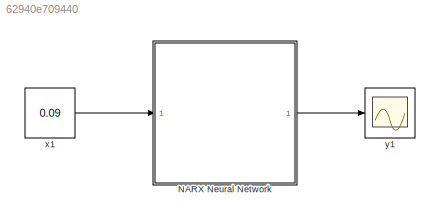
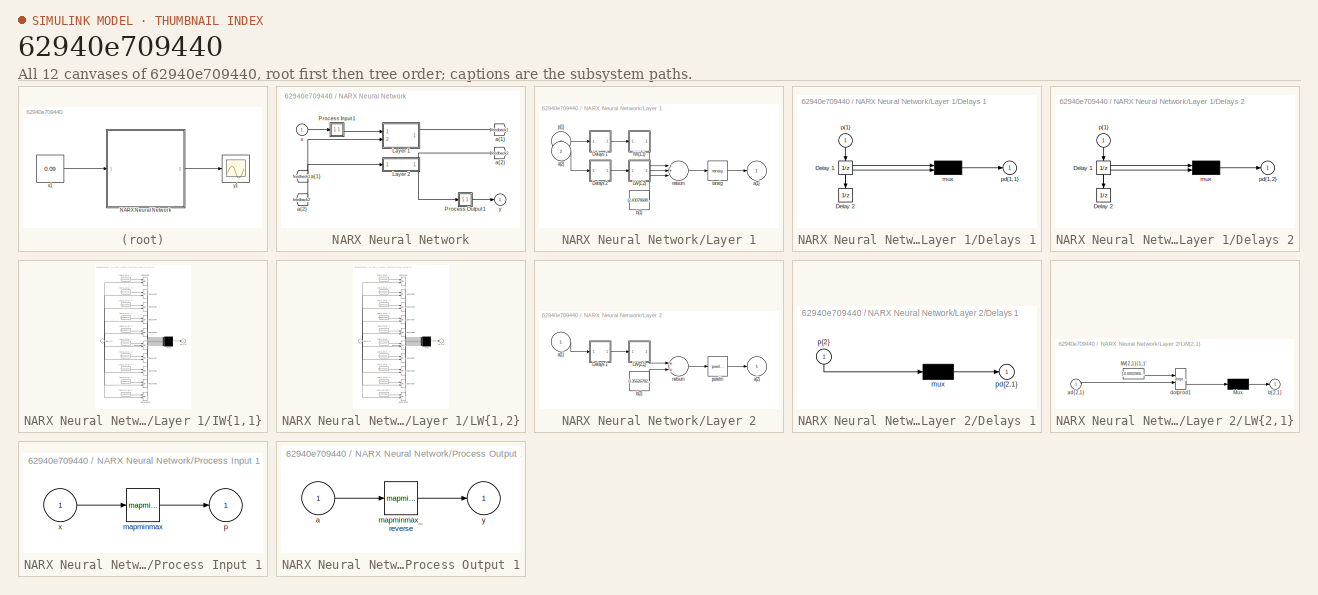
[diagram: thumbnail index - all 12 canvases of the model, root first then tree order]
MODEL slx_62940e709440
KIND model
CONFIG AbsTol = auto
CONFIG EnableMultiTasking = off
CONFIG FixedStep = auto
CONFIG MaxStep = auto
CONFIG MinStep = auto
CONFIG RelTol = 1e-3
CONFIG SampleTimeConstraint = Unconstrained
CONFIG Solver = VariableStepAuto
CONFIG SolverName = VariableStepAuto
CONFIG StartTime = 0.0
CONFIG StopTime = 10.0
BLOCK [SubSystem] NARX Neural Network
  Ports = [1, 1]
  RequestExecContextInheritance = off
BLOCK [From] NARX Neural Network/ a{1} 
  GotoTag = feedback1
BLOCK [From] NARX Neural Network/ a{2} 
  GotoTag = feedback2
BLOCK [SubSystem] NARX Neural Network/Layer 1
  Ports = [2, 1]
  RequestExecContextInheritance = off
BLOCK [SubSystem] NARX Neural Network/Layer 1/Delays 1
  Ports = [1, 1]
  RequestExecContextInheritance = off
BLOCK [UnitDelay] NARX Neural Network/Layer 1/Delays 1/Delay 1
  InitialCondition = pi_input_1_delayed_1
  SampleTime = 0.01
BLOCK [UnitDelay] NARX Neural Network/Layer 1/Delays 1/Delay 2
  InitialCondition = pi_input_1_delayed_2
  SampleTime = 0.01
BLOCK [Mux] NARX Neural Network/Layer 1/Delays 1/mux
  Inputs = 2
  Ports = [2, 1]
BLOCK [Outport] NARX Neural Network/Layer 1/Delays 1/pd{1,1}
  IconDisplay = Port number
BLOCK [Inport] NARX Neural Network/Layer 1/Delays 1/p{1}
  IconDisplay = Port number
  PortDimensions = 1
  SampleTime = 0.01
BLOCK [SubSystem] NARX Neural Network/Layer 1/Delays 2
  Ports = [1, 1]
  RequestExecContextInheritance = off
BLOCK [UnitDelay] NARX Neural Network/Layer 1/Delays 2/Delay 1
  InitialCondition = ai_layer_2_delayed_1
  SampleTime = 0.01
BLOCK [UnitDelay] NARX Neural Network/Layer 1/Delays 2/Delay 2
  InitialCondition = ai_layer_2_delayed_2
  SampleTime = 0.01
BLOCK [Mux] NARX Neural Network/Layer 1/Delays 2/mux
  Inputs = 2
  Ports = [2, 1]
BLOCK [Outport] NARX Neural Network/Layer 1/Delays 2/pd{1,2}
  IconDisplay = Port number
BLOCK [Inport] NARX Neural Network/Layer 1/Delays 2/p{1}
  IconDisplay = Port number
  PortDimensions = 1
  SampleTime = 0.01
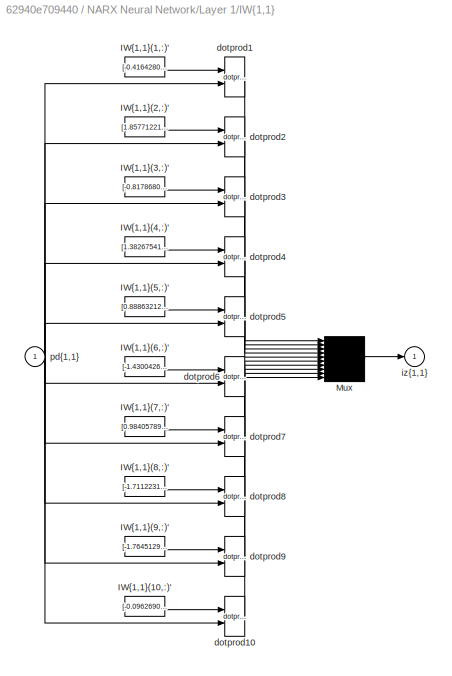
BLOCK [SubSystem] NARX Neural Network/Layer 1/IW{1,1}
  Ports = [1, 1]
  RequestExecContextInheritance = off
BLOCK [Constant] NARX Neural Network/Layer 1/IW{1,1}/IW{1,1}(1,:)'
  Value = [-0.41642805444441044482317693109507672488689422607421875;-1.9693929663534077700859370452235452830791473388671875]
BLOCK [Constant] NARX Neural Network/Layer 1/IW{1,1}/IW{1,1}(10,:)'
  Value = [-0.09626905268124276437990971544422791339457035064697265625;0.2055210521182226635072964882056112401187419891357421875]
BLOCK [Constant] NARX Neural Network/Layer 1/IW{1,1}/IW{1,1}(2,:)'
  Value = [1.8577122190533861267880411105579696595668792724609375;1.1447585130821373855525280305300839245319366455078125]
BLOCK [Constant] NARX Neural Network/Layer 1/IW{1,1}/IW{1,1}(3,:)'
  Value = [-0.81786805044785670926188458906835876405239105224609375;2.162620258585567167841645641601644456386566162109375]
BLOCK [Constant] NARX Neural Network/Layer 1/IW{1,1}/IW{1,1}(4,:)'
  Value = [1.3826754166758348230104047615895979106426239013671875;-1.4455971702134331469125072544557042419910430908203125]
BLOCK [Constant] NARX Neural Network/Layer 1/IW{1,1}/IW{1,1}(5,:)'
  Value = [0.8886321294317796049000435232301242649555206298828125;-0.85835478361292860682851824094541370868682861328125]
BLOCK [Constant] NARX Neural Network/Layer 1/IW{1,1}/IW{1,1}(6,:)'
  Value = [-1.4300426768074843142386498584528453648090362548828125;1.64494755028617323233675051596947014331817626953125]
BLOCK [Constant] NARX Neural Network/Layer 1/IW{1,1}/IW{1,1}(7,:)'
  Value = [0.98405789023299561346647124082664959132671356201171875;-0.96871511552262468125462646639789454638957977294921875]
BLOCK [Constant] NARX Neural Network/Layer 1/IW{1,1}/IW{1,1}(8,:)'
  Value = [-1.7112231432933509012173090013675391674041748046875;-0.139123617234487240157392307082773186266422271728515625]
BLOCK [Constant] NARX Neural Network/Layer 1/IW{1,1}/IW{1,1}(9,:)'
  Value = [-1.76451291856423697623768021003343164920806884765625;0.260631923466663917299257491322350688278675079345703125]
BLOCK [Mux] NARX Neural Network/Layer 1/IW{1,1}/Mux
  Inputs = 10
  Ports = [10, 1]
BLOCK [Reference] NARX Neural Network/Layer 1/IW{1,1}/dotprod1  REF=neural/Weight Functions/dotprod
  Ports = [2, 1]
  SourceBlock = neural/Weight Functions/dotprod
  SourceProductBaseCode = Missing
  SourceProductName = MATLAB Runtime - Deep Learning Toolbox
  SourceType = DOTPROD
BLOCK [Reference] NARX Neural Network/Layer 1/IW{1,1}/dotprod10  REF=neural/Weight Functions/dotprod
  Ports = [2, 1]
  SourceBlock = neural/Weight Functions/dotprod
  SourceProductBaseCode = Missing
  SourceProductName = MATLAB Runtime - Deep Learning Toolbox
  SourceType = DOTPROD
BLOCK [Reference] NARX Neural Network/Layer 1/IW{1,1}/dotprod2  REF=neural/Weight Functions/dotprod
  Ports = [2, 1]
  SourceBlock = neural/Weight Functions/dotprod
  SourceProductBaseCode = Missing
  SourceProductName = MATLAB Runtime - Deep Learning Toolbox
  SourceType = DOTPROD
BLOCK [Reference] NARX Neural Network/Layer 1/IW{1,1}/dotprod3  REF=neural/Weight Functions/dotprod
  Ports = [2, 1]
  SourceBlock = neural/Weight Functions/dotprod
  SourceProductBaseCode = Missing
  SourceProductName = MATLAB Runtime - Deep Learning Toolbox
  SourceType = DOTPROD
BLOCK [Reference] NARX Neural Network/Layer 1/IW{1,1}/dotprod4  REF=neural/Weight Functions/dotprod
  Ports = [2, 1]
  SourceBlock = neural/Weight Functions/dotprod
  SourceProductBaseCode = Missing
  SourceProductName = MATLAB Runtime - Deep Learning Toolbox
  SourceType = DOTPROD
BLOCK [Reference] NARX Neural Network/Layer 1/IW{1,1}/dotprod5  REF=neural/Weight Functions/dotprod
  Ports = [2, 1]
  SourceBlock = neural/Weight Functions/dotprod
  SourceProductBaseCode = Missing
  SourceProductName = MATLAB Runtime - Deep Learning Toolbox
  SourceType = DOTPROD
BLOCK [Reference] NARX Neural Network/Layer 1/IW{1,1}/dotprod6  REF=neural/Weight Functions/dotprod
  Ports = [2, 1]
  SourceBlock = neural/Weight Functions/dotprod
  SourceProductBaseCode = Missing
  SourceProductName = MATLAB Runtime - Deep Learning Toolbox
  SourceType = DOTPROD
BLOCK [Reference] NARX Neural Network/Layer 1/IW{1,1}/dotprod7  REF=neural/Weight Functions/dotprod
  Ports = [2, 1]
  SourceBlock = neural/Weight Functions/dotprod
  SourceProductBaseCode = Missing
  SourceProductName = MATLAB Runtime - Deep Learning Toolbox
  SourceType = DOTPROD
BLOCK [Reference] NARX Neural Network/Layer 1/IW{1,1}/dotprod8  REF=neural/Weight Functions/dotprod
  Ports = [2, 1]
  SourceBlock = neural/Weight Functions/dotprod
  SourceProductBaseCode = Missing
  SourceProductName = MATLAB Runtime - Deep Learning Toolbox
  SourceType = DOTPROD
BLOCK [Reference] NARX Neural Network/Layer 1/IW{1,1}/dotprod9  REF=neural/Weight Functions/dotprod
  Ports = [2, 1]
  SourceBlock = neural/Weight Functions/dotprod
  SourceProductBaseCode = Missing
  SourceProductName = MATLAB Runtime - Deep Learning Toolbox
  SourceType = DOTPROD
BLOCK [Outport] NARX Neural Network/Layer 1/IW{1,1}/iz{1,1}
  IconDisplay = Port number
BLOCK [Inport] NARX Neural Network/Layer 1/IW{1,1}/pd{1,1}
  IconDisplay = Port number
  PortDimensions = 2
  SampleTime = 0.01
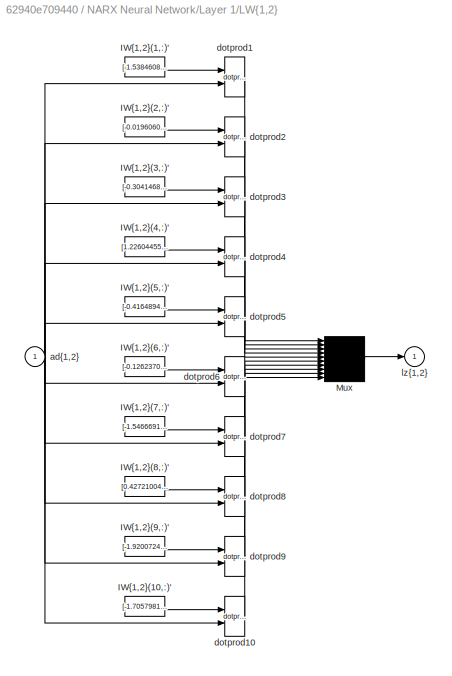
BLOCK [SubSystem] NARX Neural Network/Layer 1/LW{1,2}
  Ports = [1, 1]
  RequestExecContextInheritance = off
BLOCK [Constant] NARX Neural Network/Layer 1/LW{1,2}/IW{1,2}(1,:)'
  Value = [-1.5384608195457343260414972974103875458240509033203125;-0.45907816602361461999493030816665850579738616943359375]
BLOCK [Constant] NARX Neural Network/Layer 1/LW{1,2}/IW{1,2}(10,:)'
  Value = [-1.7057981807707724986045150217250920832157135009765625;-1.745005355044566552891183164319954812526702880859375]
BLOCK [Constant] NARX Neural Network/Layer 1/LW{1,2}/IW{1,2}(2,:)'
  Value = [-0.01960601092642411114042033659643493592739105224609375;1.1863706834102514253714844016940332949161529541015625]
BLOCK [Constant] NARX Neural Network/Layer 1/LW{1,2}/IW{1,2}(3,:)'
  Value = [-0.30414683592052760285895374181563965976238250732421875;-0.8352507669310214044600115812500007450580596923828125]
BLOCK [Constant] NARX Neural Network/Layer 1/LW{1,2}/IW{1,2}(4,:)'
  Value = [1.22604455608334195204633942921645939350128173828125;-0.655406910344883186780862160958349704742431640625]
BLOCK [Constant] NARX Neural Network/Layer 1/LW{1,2}/IW{1,2}(5,:)'
  Value = [-0.41648942938919475409420556388795375823974609375;0.79061049954171280784720465817372314631938934326171875]
BLOCK [Constant] NARX Neural Network/Layer 1/LW{1,2}/IW{1,2}(6,:)'
  Value = [-0.126237089178946215728416291312896646559238433837890625;-0.4999546432096746428896949510090053081512451171875]
BLOCK [Constant] NARX Neural Network/Layer 1/LW{1,2}/IW{1,2}(7,:)'
  Value = [-1.546669116320985803980647688149474561214447021484375;1.276238727789211768737231977866031229496002197265625]
BLOCK [Constant] NARX Neural Network/Layer 1/LW{1,2}/IW{1,2}(8,:)'
  Value = [0.427210049418849491242866633911035023629665374755859375;1.15371076051329257694533225730992853641510009765625]
BLOCK [Constant] NARX Neural Network/Layer 1/LW{1,2}/IW{1,2}(9,:)'
  Value = [-1.92007243191968512974199256859719753265380859375;0.01197141859039633875194663659158322843722999095916748046875]
BLOCK [Mux] NARX Neural Network/Layer 1/LW{1,2}/Mux
  Inputs = 10
  Ports = [10, 1]
BLOCK [Inport] NARX Neural Network/Layer 1/LW{1,2}/ad{1,2}
  IconDisplay = Port number
  PortDimensions = 2
  SampleTime = 0.01
BLOCK [Reference] NARX Neural Network/Layer 1/LW{1,2}/dotprod1  REF=neural/Weight Functions/dotprod
  Ports = [2, 1]
  SourceBlock = neural/Weight Functions/dotprod
  SourceProductBaseCode = Missing
  SourceProductName = MATLAB Runtime - Deep Learning Toolbox
  SourceType = DOTPROD
BLOCK [Reference] NARX Neural Network/Layer 1/LW{1,2}/dotprod10  REF=neural/Weight Functions/dotprod
  Ports = [2, 1]
  SourceBlock = neural/Weight Functions/dotprod
  SourceProductBaseCode = Missing
  SourceProductName = MATLAB Runtime - Deep Learning Toolbox
  SourceType = DOTPROD
BLOCK [Reference] NARX Neural Network/Layer 1/LW{1,2}/dotprod2  REF=neural/Weight Functions/dotprod
  Ports = [2, 1]
  SourceBlock = neural/Weight Functions/dotprod
  SourceProductBaseCode = Missing
  SourceProductName = MATLAB Runtime - Deep Learning Toolbox
  SourceType = DOTPROD
BLOCK [Reference] NARX Neural Network/Layer 1/LW{1,2}/dotprod3  REF=neural/Weight Functions/dotprod
  Ports = [2, 1]
  SourceBlock = neural/Weight Functions/dotprod
  SourceProductBaseCode = Missing
  SourceProductName = MATLAB Runtime - Deep Learning Toolbox
  SourceType = DOTPROD
BLOCK [Reference] NARX Neural Network/Layer 1/LW{1,2}/dotprod4  REF=neural/Weight Functions/dotprod
  Ports = [2, 1]
  SourceBlock = neural/Weight Functions/dotprod
  SourceProductBaseCode = Missing
  SourceProductName = MATLAB Runtime - Deep Learning Toolbox
  SourceType = DOTPROD
BLOCK [Reference] NARX Neural Network/Layer 1/LW{1,2}/dotprod5  REF=neural/Weight Functions/dotprod
  Ports = [2, 1]
  SourceBlock = neural/Weight Functions/dotprod
  SourceProductBaseCode = Missing
  SourceProductName = MATLAB Runtime - Deep Learning Toolbox
  SourceType = DOTPROD
BLOCK [Reference] NARX Neural Network/Layer 1/LW{1,2}/dotprod6  REF=neural/Weight Functions/dotprod
  Ports = [2, 1]
  SourceBlock = neural/Weight Functions/dotprod
  SourceProductBaseCode = Missing
  SourceProductName = MATLAB Runtime - Deep Learning Toolbox
  SourceType = DOTPROD
BLOCK [Reference] NARX Neural Network/Layer 1/LW{1,2}/dotprod7  REF=neural/Weight Functions/dotprod
  Ports = [2, 1]
  SourceBlock = neural/Weight Functions/dotprod
  SourceProductBaseCode = Missing
  SourceProductName = MATLAB Runtime - Deep Learning Toolbox
  SourceType = DOTPROD
BLOCK [Reference] NARX Neural Network/Layer 1/LW{1,2}/dotprod8  REF=neural/Weight Functions/dotprod
  Ports = [2, 1]
  SourceBlock = neural/Weight Functions/dotprod
  SourceProductBaseCode = Missing
  SourceProductName = MATLAB Runtime - Deep Learning Toolbox
  SourceType = DOTPROD
BLOCK [Reference] NARX Neural Network/Layer 1/LW{1,2}/dotprod9  REF=neural/Weight Functions/dotprod
  Ports = [2, 1]
  SourceBlock = neural/Weight Functions/dotprod
  SourceProductBaseCode = Missing
  SourceProductName = MATLAB Runtime - Deep Learning Toolbox
  SourceType = DOTPROD
BLOCK [Outport] NARX Neural Network/Layer 1/LW{1,2}/lz{1,2}
  IconDisplay = Port number
BLOCK [Outport] NARX Neural Network/Layer 1/a{1}
  IconDisplay = Port number
  InitialOutput = [0;0;0;0;0;0;0;0;0;0]
BLOCK [Inport] NARX Neural Network/Layer 1/a{2} 
  IconDisplay = Port number
  Port = 2
  PortDimensions = 1
  SampleTime = 0.01
BLOCK [Constant] NARX Neural Network/Layer 1/b{1}
  Value = [2.43078688949981991385129731497727334499359130859375;-1.86148379950379361247314591309987008571624755859375;1.35868593613269172948321283911354839801788330078125;-0.851887770238754615803600245271809399127960205078125;0.683907628408050971557941011269576847553253173828125;-0.9025229712713598306805806714692153036594390869140625;0.1321771156413834857890066132313222624361515045166015625;-1.1017580617945...<+145ch>
BLOCK [Sum] NARX Neural Network/Layer 1/netsum
  Inputs = 3
  Ports = [3, 1]
BLOCK [Inport] NARX Neural Network/Layer 1/p{1}
  IconDisplay = Port number
  PortDimensions = 1
  SampleTime = 0.01
BLOCK [Reference] NARX Neural Network/Layer 1/tansig  REF=neural/Transfer Functions/tansig
  Ports = [1, 1]
  SourceBlock = neural/Transfer Functions/tansig
  SourceProductBaseCode = Missing
  SourceProductName = MATLAB Runtime - Deep Learning Toolbox
  SourceType = TANSIG
BLOCK [SubSystem] NARX Neural Network/Layer 2
  Ports = [1, 1]
  RequestExecContextInheritance = off
BLOCK [SubSystem] NARX Neural Network/Layer 2/Delays 1
  Ports = [1, 1]
  RequestExecContextInheritance = off
BLOCK [Mux] NARX Neural Network/Layer 2/Delays 1/mux
  Inputs = 1
  Ports = [1, 1]
BLOCK [Outport] NARX Neural Network/Layer 2/Delays 1/pd{2,1}
  IconDisplay = Port number
BLOCK [Inport] NARX Neural Network/Layer 2/Delays 1/p{2}
  IconDisplay = Port number
  PortDimensions = 10
  SampleTime = 0.01
BLOCK [SubSystem] NARX Neural Network/Layer 2/LW{2,1}
  Ports = [1, 1]
  RequestExecContextInheritance = off
BLOCK [Constant] NARX Neural Network/Layer 2/LW{2,1}/IW{2,1}(1,:)'
  Value = [-0.0002966407455483847260303831294692145092994906008243560791015625;-0.00023246378687739240064859258527718566256226040422916412353515625;0.39616347284541542084213006091886200010776519775390625;0.90882883767107969230636399515788070857524871826171875;1.303642835757107487637540543801151216030120849609375;-0.2294196046704719271769334909549797885119915008544921875;-1.4645988398573728250795511485193856...<+208ch>
BLOCK [Mux] NARX Neural Network/Layer 2/LW{2,1}/Mux
  Inputs = 1
  Ports = [1, 1]
BLOCK [Inport] NARX Neural Network/Layer 2/LW{2,1}/ad{2,1}
  IconDisplay = Port number
  PortDimensions = 10
  SampleTime = 0.01
BLOCK [Reference] NARX Neural Network/Layer 2/LW{2,1}/dotprod1  REF=neural/Weight Functions/dotprod
  Ports = [2, 1]
  SourceBlock = neural/Weight Functions/dotprod
  SourceProductBaseCode = Missing
  SourceProductName = MATLAB Runtime - Deep Learning Toolbox
  SourceType = DOTPROD
BLOCK [Outport] NARX Neural Network/Layer 2/LW{2,1}/lz{2,1}
  IconDisplay = Port number
BLOCK [Inport] NARX Neural Network/Layer 2/a{1} 
  IconDisplay = Port number
  PortDimensions = 10
  SampleTime = 0.01
BLOCK [Outport] NARX Neural Network/Layer 2/a{2}
  IconDisplay = Port number
  InitialOutput = 0
BLOCK [Constant] NARX Neural Network/Layer 2/b{2}
  Value = -0.356267826269464016331056654962594620883464813232421875
BLOCK [Sum] NARX Neural Network/Layer 2/netsum
  Inputs = 2
  Ports = [2, 1]
BLOCK [Reference] NARX Neural Network/Layer 2/purelin  REF=neural/Transfer Functions/purelin
  Ports = [1, 1]
  SourceBlock = neural/Transfer Functions/purelin
  SourceProductBaseCode = Missing
  SourceProductName = MATLAB Runtime - Deep Learning Toolbox
  SourceType = PURELIN
BLOCK [SubSystem] NARX Neural Network/Process Input 1
  Ports = [1, 1]
  RequestExecContextInheritance = off
BLOCK [Reference] NARX Neural Network/Process Input 1/mapminmax  REF=neural/Processing Functions/mapminmax
  Ports = [1, 1]
  SourceBlock = neural/Processing Functions/mapminmax
  SourceProductBaseCode = Missing
  SourceProductName = MATLAB Runtime - Deep Learning Toolbox
  SourceType = MAPMINMAX Preprocess
BLOCK [Outport] NARX Neural Network/Process Input 1/p
  IconDisplay = Port number
  PortDimensions = 1
  SampleTime = 0.01
BLOCK [Inport] NARX Neural Network/Process Input 1/x
  IconDisplay = Port number
  PortDimensions = 1
  SampleTime = 0.01
BLOCK [SubSystem] NARX Neural Network/Process Output 1
  Ports = [1, 1]
  RequestExecContextInheritance = off
BLOCK [Inport] NARX Neural Network/Process Output 1/a
  IconDisplay = Port number
  PortDimensions = 1
  SampleTime = 0.01
BLOCK [Reference] NARX Neural Network/Process Output 1/mapminmax_reverse  REF=neural/Processing Functions/mapminmax_reverse
  Ports = [1, 1]
  SourceBlock = neural/Processing Functions/mapminmax_reverse
  SourceProductBaseCode = Missing
  SourceProductName = MATLAB Runtime - Deep Learning Toolbox
  SourceType = MAPMINMAX Reverse Process
BLOCK [Outport] NARX Neural Network/Process Output 1/y
  IconDisplay = Port number
  PortDimensions = 1
  SampleTime = 0.01
BLOCK [Goto] NARX Neural Network/a{1}
  GotoTag = feedback1
BLOCK [Goto] NARX Neural Network/a{2}
  GotoTag = feedback2
BLOCK [Inport] NARX Neural Network/x
  IconDisplay = Port number
  PortDimensions = 1
  SampleTime = 0.01
BLOCK [Outport] NARX Neural Network/y
  IconDisplay = Port number
  InitialOutput = 0
BLOCK [Constant] x1
  SampleTime = 0.01
  Value = 0.09
BLOCK [Scope] y1
  Floating = off
  NumInputPorts = 1
  Ports = [1]
LINE NARX Neural Network/ a{1} :1 -> NARX Neural Network/Layer 2:1
LINE NARX Neural Network/ a{2} :1 -> NARX Neural Network/Layer 1:2
NET NARX Neural Network/Layer 1/Delays 1/Delay 1:1 -> NARX Neural Network/Layer 1/Delays 1/Delay 2:1, NARX Neural Network/Layer 1/Delays 1/mux:1
LINE NARX Neural Network/Layer 1/Delays 1/Delay 2:1 -> NARX Neural Network/Layer 1/Delays 1/mux:2
LINE NARX Neural Network/Layer 1/Delays 1/mux:1 -> NARX Neural Network/Layer 1/Delays 1/pd{1,1}:1
LINE NARX Neural Network/Layer 1/Delays 1/p{1}:1 -> NARX Neural Network/Layer 1/Delays 1/Delay 1:1
LINE NARX Neural Network/Layer 1/Delays 1:1 -> NARX Neural Network/Layer 1/IW{1,1}:1
NET NARX Neural Network/Layer 1/Delays 2/Delay 1:1 -> NARX Neural Network/Layer 1/Delays 2/Delay 2:1, NARX Neural Network/Layer 1/Delays 2/mux:1
LINE NARX Neural Network/Layer 1/Delays 2/Delay 2:1 -> NARX Neural Network/Layer 1/Delays 2/mux:2
LINE NARX Neural Network/Layer 1/Delays 2/mux:1 -> NARX Neural Network/Layer 1/Delays 2/pd{1,2}:1
LINE NARX Neural Network/Layer 1/Delays 2/p{1}:1 -> NARX Neural Network/Layer 1/Delays 2/Delay 1:1
LINE NARX Neural Network/Layer 1/Delays 2:1 -> NARX Neural Network/Layer 1/LW{1,2}:1
LINE NARX Neural Network/Layer 1/IW{1,1}/IW{1,1}(1,:)':1 -> NARX Neural Network/Layer 1/IW{1,1}/dotprod1:1
LINE NARX Neural Network/Layer 1/IW{1,1}/IW{1,1}(10,:)':1 -> NARX Neural Network/Layer 1/IW{1,1}/dotprod10:1
LINE NARX Neural Network/Layer 1/IW{1,1}/IW{1,1}(2,:)':1 -> NARX Neural Network/Layer 1/IW{1,1}/dotprod2:1
LINE NARX Neural Network/Layer 1/IW{1,1}/IW{1,1}(3,:)':1 -> NARX Neural Network/Layer 1/IW{1,1}/dotprod3:1
LINE NARX Neural Network/Layer 1/IW{1,1}/IW{1,1}(4,:)':1 -> NARX Neural Network/Layer 1/IW{1,1}/dotprod4:1
LINE NARX Neural Network/Layer 1/IW{1,1}/IW{1,1}(5,:)':1 -> NARX Neural Network/Layer 1/IW{1,1}/dotprod5:1
LINE NARX Neural Network/Layer 1/IW{1,1}/IW{1,1}(6,:)':1 -> NARX Neural Network/Layer 1/IW{1,1}/dotprod6:1
LINE NARX Neural Network/Layer 1/IW{1,1}/IW{1,1}(7,:)':1 -> NARX Neural Network/Layer 1/IW{1,1}/dotprod7:1
LINE NARX Neural Network/Layer 1/IW{1,1}/IW{1,1}(8,:)':1 -> NARX Neural Network/Layer 1/IW{1,1}/dotprod8:1
LINE NARX Neural Network/Layer 1/IW{1,1}/IW{1,1}(9,:)':1 -> NARX Neural Network/Layer 1/IW{1,1}/dotprod9:1
LINE NARX Neural Network/Layer 1/IW{1,1}/Mux:1 -> NARX Neural Network/Layer 1/IW{1,1}/iz{1,1}:1
LINE NARX Neural Network/Layer 1/IW{1,1}/dotprod10:1 -> NARX Neural Network/Layer 1/IW{1,1}/Mux:10
LINE NARX Neural Network/Layer 1/IW{1,1}/dotprod1:1 -> NARX Neural Network/Layer 1/IW{1,1}/Mux:1
LINE NARX Neural Network/Layer 1/IW{1,1}/dotprod2:1 -> NARX Neural Network/Layer 1/IW{1,1}/Mux:2
LINE NARX Neural Network/Layer 1/IW{1,1}/dotprod3:1 -> NARX Neural Network/Layer 1/IW{1,1}/Mux:3
LINE NARX Neural Network/Layer 1/IW{1,1}/dotprod4:1 -> NARX Neural Network/Layer 1/IW{1,1}/Mux:4
LINE NARX Neural Network/Layer 1/IW{1,1}/dotprod5:1 -> NARX Neural Network/Layer 1/IW{1,1}/Mux:5
LINE NARX Neural Network/Layer 1/IW{1,1}/dotprod6:1 -> NARX Neural Network/Layer 1/IW{1,1}/Mux:6
LINE NARX Neural Network/Layer 1/IW{1,1}/dotprod7:1 -> NARX Neural Network/Layer 1/IW{1,1}/Mux:7
LINE NARX Neural Network/Layer 1/IW{1,1}/dotprod8:1 -> NARX Neural Network/Layer 1/IW{1,1}/Mux:8
LINE NARX Neural Network/Layer 1/IW{1,1}/dotprod9:1 -> NARX Neural Network/Layer 1/IW{1,1}/Mux:9
NET NARX Neural Network/Layer 1/IW{1,1}/pd{1,1}:1 -> NARX Neural Network/Layer 1/IW{1,1}/dotprod10:2, NARX Neural Network/Layer 1/IW{1,1}/dotprod1:2, NARX Neural Network/Layer 1/IW{1,1}/dotprod2:2, NARX Neural Network/Layer 1/IW{1,1}/dotprod3:2, NARX Neural Network/Layer 1/IW{1,1}/dotprod4:2, NARX Neural Network/Layer 1/IW{1,1}/dotprod5:2, NARX Neural Network/Layer 1/IW{1,1}/dotprod6:2, NARX Neural Network/Layer 1/IW{1,1}/dotprod7:2, NARX Neural Network/Layer 1/IW{1,1}/dotprod8:2, NARX Neural Network/Layer 1/IW{1,1}/dotprod9:2
LINE NARX Neural Network/Layer 1/IW{1,1}:1 -> NARX Neural Network/Layer 1/netsum:1
LINE NARX Neural Network/Layer 1/LW{1,2}/IW{1,2}(1,:)':1 -> NARX Neural Network/Layer 1/LW{1,2}/dotprod1:1
LINE NARX Neural Network/Layer 1/LW{1,2}/IW{1,2}(10,:)':1 -> NARX Neural Network/Layer 1/LW{1,2}/dotprod10:1
LINE NARX Neural Network/Layer 1/LW{1,2}/IW{1,2}(2,:)':1 -> NARX Neural Network/Layer 1/LW{1,2}/dotprod2:1
LINE NARX Neural Network/Layer 1/LW{1,2}/IW{1,2}(3,:)':1 -> NARX Neural Network/Layer 1/LW{1,2}/dotprod3:1
LINE NARX Neural Network/Layer 1/LW{1,2}/IW{1,2}(4,:)':1 -> NARX Neural Network/Layer 1/LW{1,2}/dotprod4:1
LINE NARX Neural Network/Layer 1/LW{1,2}/IW{1,2}(5,:)':1 -> NARX Neural Network/Layer 1/LW{1,2}/dotprod5:1
LINE NARX Neural Network/Layer 1/LW{1,2}/IW{1,2}(6,:)':1 -> NARX Neural Network/Layer 1/LW{1,2}/dotprod6:1
LINE NARX Neural Network/Layer 1/LW{1,2}/IW{1,2}(7,:)':1 -> NARX Neural Network/Layer 1/LW{1,2}/dotprod7:1
LINE NARX Neural Network/Layer 1/LW{1,2}/IW{1,2}(8,:)':1 -> NARX Neural Network/Layer 1/LW{1,2}/dotprod8:1
LINE NARX Neural Network/Layer 1/LW{1,2}/IW{1,2}(9,:)':1 -> NARX Neural Network/Layer 1/LW{1,2}/dotprod9:1
LINE NARX Neural Network/Layer 1/LW{1,2}/Mux:1 -> NARX Neural Network/Layer 1/LW{1,2}/lz{1,2}:1
NET NARX Neural Network/Layer 1/LW{1,2}/ad{1,2}:1 -> NARX Neural Network/Layer 1/LW{1,2}/dotprod10:2, NARX Neural Network/Layer 1/LW{1,2}/dotprod1:2, NARX Neural Network/Layer 1/LW{1,2}/dotprod2:2, NARX Neural Network/Layer 1/LW{1,2}/dotprod3:2, NARX Neural Network/Layer 1/LW{1,2}/dotprod4:2, NARX Neural Network/Layer 1/LW{1,2}/dotprod5:2, NARX Neural Network/Layer 1/LW{1,2}/dotprod6:2, NARX Neural Network/Layer 1/LW{1,2}/dotprod7:2, NARX Neural Network/Layer 1/LW{1,2}/dotprod8:2, NARX Neural Network/Layer 1/LW{1,2}/dotprod9:2
LINE NARX Neural Network/Layer 1/LW{1,2}/dotprod10:1 -> NARX Neural Network/Layer 1/LW{1,2}/Mux:10
LINE NARX Neural Network/Layer 1/LW{1,2}/dotprod1:1 -> NARX Neural Network/Layer 1/LW{1,2}/Mux:1
LINE NARX Neural Network/Layer 1/LW{1,2}/dotprod2:1 -> NARX Neural Network/Layer 1/LW{1,2}/Mux:2
LINE NARX Neural Network/Layer 1/LW{1,2}/dotprod3:1 -> NARX Neural Network/Layer 1/LW{1,2}/Mux:3
LINE NARX Neural Network/Layer 1/LW{1,2}/dotprod4:1 -> NARX Neural Network/Layer 1/LW{1,2}/Mux:4
LINE NARX Neural Network/Layer 1/LW{1,2}/dotprod5:1 -> NARX Neural Network/Layer 1/LW{1,2}/Mux:5
LINE NARX Neural Network/Layer 1/LW{1,2}/dotprod6:1 -> NARX Neural Network/Layer 1/LW{1,2}/Mux:6
LINE NARX Neural Network/Layer 1/LW{1,2}/dotprod7:1 -> NARX Neural Network/Layer 1/LW{1,2}/Mux:7
LINE NARX Neural Network/Layer 1/LW{1,2}/dotprod8:1 -> NARX Neural Network/Layer 1/LW{1,2}/Mux:8
LINE NARX Neural Network/Layer 1/LW{1,2}/dotprod9:1 -> NARX Neural Network/Layer 1/LW{1,2}/Mux:9
LINE NARX Neural Network/Layer 1/LW{1,2}:1 -> NARX Neural Network/Layer 1/netsum:2
LINE NARX Neural Network/Layer 1/a{2} :1 -> NARX Neural Network/Layer 1/Delays 2:1
LINE NARX Neural Network/Layer 1/b{1}:1 -> NARX Neural Network/Layer 1/netsum:3
LINE NARX Neural Network/Layer 1/netsum:1 -> NARX Neural Network/Layer 1/tansig:1
LINE NARX Neural Network/Layer 1/p{1}:1 -> NARX Neural Network/Layer 1/Delays 1:1
LINE NARX Neural Network/Layer 1/tansig:1 -> NARX Neural Network/Layer 1/a{1}:1
LINE NARX Neural Network/Layer 1:1 -> NARX Neural Network/a{1}:1
LINE NARX Neural Network/Layer 2/Delays 1/mux:1 -> NARX Neural Network/Layer 2/Delays 1/pd{2,1}:1
LINE NARX Neural Network/Layer 2/Delays 1/p{2}:1 -> NARX Neural Network/Layer 2/Delays 1/mux:1
LINE NARX Neural Network/Layer 2/Delays 1:1 -> NARX Neural Network/Layer 2/LW{2,1}:1
LINE NARX Neural Network/Layer 2/LW{2,1}/IW{2,1}(1,:)':1 -> NARX Neural Network/Layer 2/LW{2,1}/dotprod1:1
LINE NARX Neural Network/Layer 2/LW{2,1}/Mux:1 -> NARX Neural Network/Layer 2/LW{2,1}/lz{2,1}:1
LINE NARX Neural Network/Layer 2/LW{2,1}/ad{2,1}:1 -> NARX Neural Network/Layer 2/LW{2,1}/dotprod1:2
LINE NARX Neural Network/Layer 2/LW{2,1}/dotprod1:1 -> NARX Neural Network/Layer 2/LW{2,1}/Mux:1
LINE NARX Neural Network/Layer 2/LW{2,1}:1 -> NARX Neural Network/Layer 2/netsum:1
LINE NARX Neural Network/Layer 2/a{1} :1 -> NARX Neural Network/Layer 2/Delays 1:1
LINE NARX Neural Network/Layer 2/b{2}:1 -> NARX Neural Network/Layer 2/netsum:2
LINE NARX Neural Network/Layer 2/netsum:1 -> NARX Neural Network/Layer 2/purelin:1
LINE NARX Neural Network/Layer 2/purelin:1 -> NARX Neural Network/Layer 2/a{2}:1
NET NARX Neural Network/Layer 2:1 -> NARX Neural Network/Process Output 1:1, NARX Neural Network/a{2}:1
LINE NARX Neural Network/Process Input 1/mapminmax:1 -> NARX Neural Network/Process Input 1/p:1
LINE NARX Neural Network/Process Input 1/x:1 -> NARX Neural Network/Process Input 1/mapminmax:1
LINE NARX Neural Network/Process Input 1:1 -> NARX Neural Network/Layer 1:1
LINE NARX Neural Network/Process Output 1/a:1 -> NARX Neural Network/Process Output 1/mapminmax_reverse:1
LINE NARX Neural Network/Process Output 1/mapminmax_reverse:1 -> NARX Neural Network/Process Output 1/y:1
LINE NARX Neural Network/Process Output 1:1 -> NARX Neural Network/y:1
LINE NARX Neural Network/x:1 -> NARX Neural Network/Process Input 1:1
LINE NARX Neural Network:1 -> y1:1
LINE x1:1 -> NARX Neural Network:1
note: NET lines group one-source signal fan-out (src -> all destinations, sorted); 1:1 wires keep LINE
